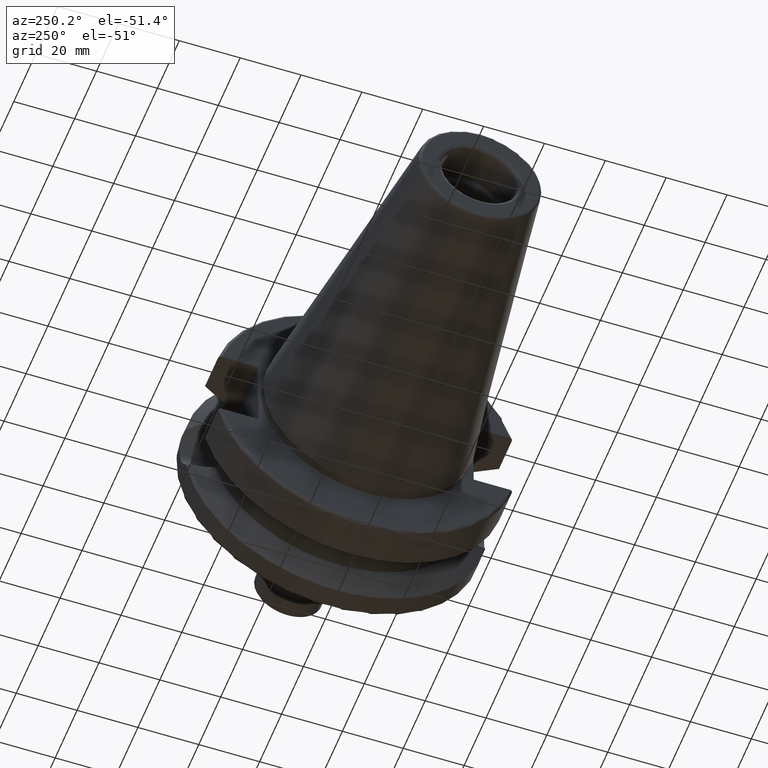
[diagram: clean part render]
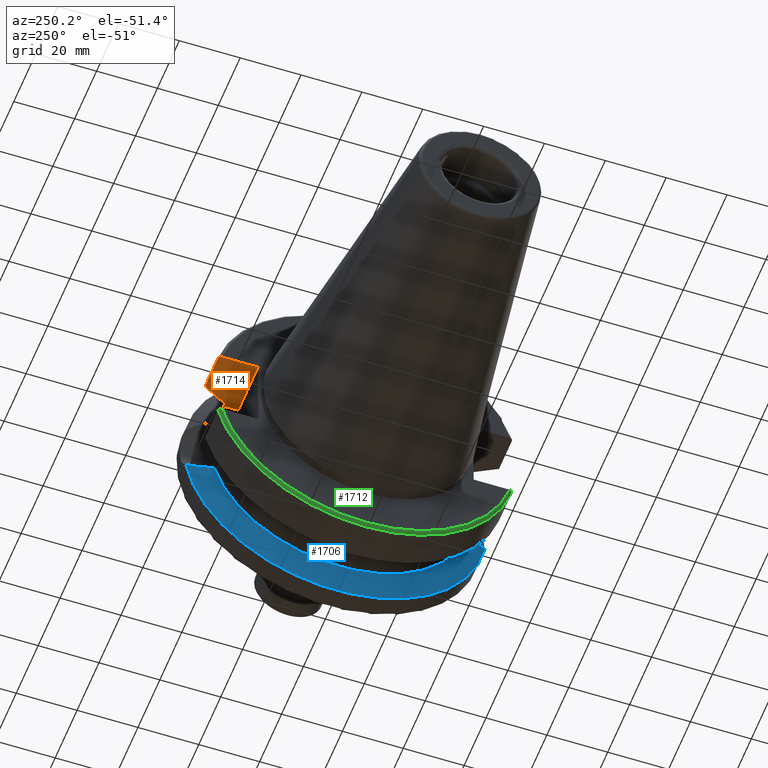
[diagram: same view with three faces highlighted in distinct colors, each labeled with its STEP entity id]
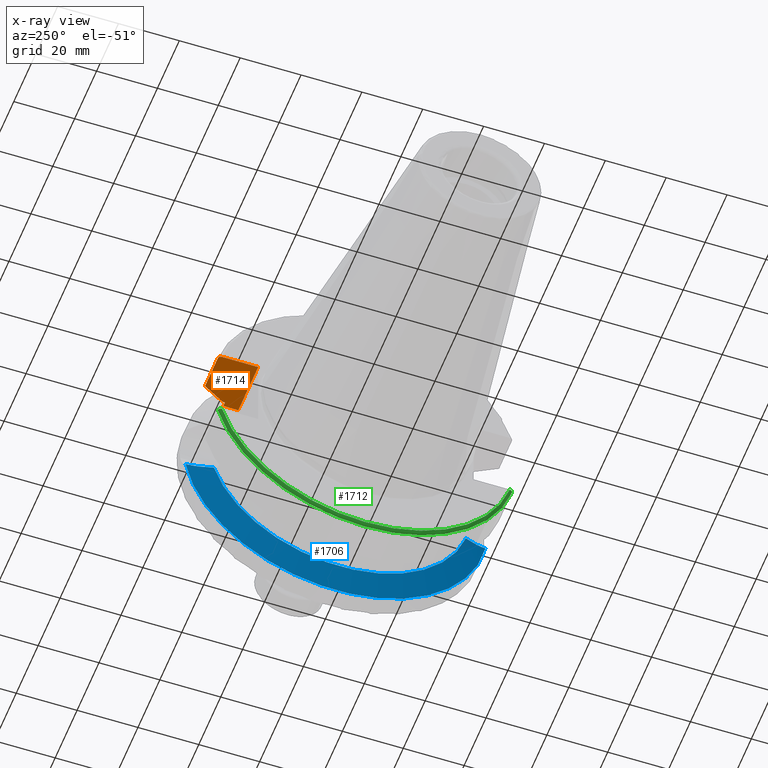
[diagram: x-ray of the same camera — body ghosted, the three highlighted faces saturated]
A machine part, auxiliary view with three faces highlighted in distinct colors.
The next image is the same camera in x-ray (body ghosted, the three faces saturated) — at least one of them is partly hidden behind the body in this view.
Their STEP definitions:

[orange] entity #1714 — the highlighted planar face has unit normal (0, 0, 1).
#67=(
BOUNDED_CURVE()
B_SPLINE_CURVE(2,(#2987,#2988,#2989),.UNSPECIFIED.,.F.,.F.)
B_SPLINE_CURVE_WITH_KNOTS((3,3),(0.,0.834435209413224),.UNSPECIFIED.)
CURVE()
GEOMETRIC_REPRESENTATION_ITEM()
RATIONAL_B_SPLINE_CURVE((1.,1.00310098206515,1.))
REPRESENTATION_ITEM('')
);
#89=B_SPLINE_CURVE_WITH_KNOTS('',3,(#2974,#2975,#2976,#2977,#2978,#2979,
#2980,#2981,#2982,#2983),.UNSPECIFIED.,.F.,.F.,(4,2,2,2,4),(0.,0.0366153602488886,
0.0738785471279767,0.111954770343825,0.150744738148559),.UNSPECIFIED.);
#284=FACE_OUTER_BOUND('',#394,.T.);
#394=EDGE_LOOP('',(#1305,#1306,#1307,#1308,#1309,#1310,#1311,#1312));
#523=LINE('',#2950,#643);
#525=LINE('',#2968,#645);
#526=LINE('',#2970,#646);
#527=LINE('',#2972,#647);
#528=LINE('',#2985,#648);
#529=LINE('',#2990,#649);
#643=VECTOR('',#2296,10.);
#645=VECTOR('',#2300,10.);
#646=VECTOR('',#2301,10.);
#647=VECTOR('',#2302,10.);
#648=VECTOR('',#2303,10.);
#649=VECTOR('',#2304,10.);
#785=VERTEX_POINT('',#2947);
#786=VERTEX_POINT('',#2949);
#789=VERTEX_POINT('',#2967);
#790=VERTEX_POINT('',#2969);
#791=VERTEX_POINT('',#2971);
#792=VERTEX_POINT('',#2973);
#793=VERTEX_POINT('',#2984);
#794=VERTEX_POINT('',#2986);
#978=EDGE_CURVE('',#785,#786,#523,.T.);
#982=EDGE_CURVE('',#786,#789,#525,.T.);
#983=EDGE_CURVE('',#790,#785,#526,.T.);
#984=EDGE_CURVE('',#791,#790,#527,.T.);
#985=EDGE_CURVE('',#792,#791,#89,.T.);
#986=EDGE_CURVE('',#793,#792,#528,.T.);
#987=EDGE_CURVE('',#794,#793,#67,.T.);
#988=EDGE_CURVE('',#789,#794,#529,.T.);
#1305=ORIENTED_EDGE('',*,*,#982,.F.);
#1306=ORIENTED_EDGE('',*,*,#978,.F.);
#1307=ORIENTED_EDGE('',*,*,#983,.F.);
#1308=ORIENTED_EDGE('',*,*,#984,.F.);
#1309=ORIENTED_EDGE('',*,*,#985,.F.);
#1310=ORIENTED_EDGE('',*,*,#986,.F.);
#1311=ORIENTED_EDGE('',*,*,#987,.F.);
#1312=ORIENTED_EDGE('',*,*,#988,.F.);
#1641=PLANE('',#1958);
#1714=ADVANCED_FACE('',(#284),#1641,.F.);
#1958=AXIS2_PLACEMENT_3D('',#2966,#2298,#2299);
#2296=DIRECTION('',(0.,1.,0.));
#2298=DIRECTION('center_axis',(1.22338625303048E-16,0.,1.));
#2299=DIRECTION('ref_axis',(1.,0.,-1.22338625303048E-16));
#2300=DIRECTION('',(-1.,0.,0.));
#2301=DIRECTION('',(1.,0.,-1.22338625303048E-16));
#2302=DIRECTION('',(0.,-1.,0.));
#2303=DIRECTION('',(-1.,0.,0.));
#2304=DIRECTION('',(0.,1.,0.));
#2947=CARTESIAN_POINT('',(21.15,35.4,12.85));
#2949=CARTESIAN_POINT('',(21.15,40.3009615269909,12.85));
#2950=CARTESIAN_POINT('',(21.15,35.4,12.85));
#2966=CARTESIAN_POINT('Origin',(3.,35.4,12.85));
#2967=CARTESIAN_POINT('',(19.7,40.3009615269909,12.85));
#2968=CARTESIAN_POINT('',(23.2,40.3009615269909,12.85));
#2969=CARTESIAN_POINT('',(3.,35.4,12.85));
#2970=CARTESIAN_POINT('',(3.,35.4,12.85));
#2971=CARTESIAN_POINT('',(2.99999999999999,47.2850663529195,12.85));
#2972=CARTESIAN_POINT('',(3.,42.2,12.85));
#2973=CARTESIAN_POINT('',(4.,48.320570153921,12.85));
#2974=CARTESIAN_POINT('Ctrl Pts',(4.,48.320570153921,12.85));
#2975=CARTESIAN_POINT('Ctrl Pts',(3.87794879917038,48.320570153921,12.85));
#2976=CARTESIAN_POINT('Ctrl Pts',(3.73444179762801,48.2913008148985,12.85));
#2977=CARTESIAN_POINT('Ctrl Pts',(3.50759661267378,48.195456420672,12.85));
#2978=CARTESIAN_POINT('Ctrl Pts',(3.38466178625349,48.1111726737502,12.85));
#2979=CARTESIAN_POINT('Ctrl Pts',(3.20894825591124,47.9317521656206,12.85));
#2980=CARTESIAN_POINT('Ctrl Pts',(3.12586105659968,47.8041069632012,12.85));
#2981=CARTESIAN_POINT('Ctrl Pts',(3.0295042947282,47.5666951077039,12.85));
#2982=CARTESIAN_POINT('Ctrl Pts',(3.,47.414366245602,12.85));
#2983=CARTESIAN_POINT('Ctrl Pts',(3.,47.2850663529195,12.85));
#2984=CARTESIAN_POINT('',(15.6679155870539,48.320570153921,12.85));
#2985=CARTESIAN_POINT('',(9.83395779352694,48.320570153921,12.85));
#2986=CARTESIAN_POINT('',(19.7,41.0150665107685,12.85));
#2987=CARTESIAN_POINT('Ctrl Pts',(19.7,41.0150665107685,12.85));
#2988=CARTESIAN_POINT('Ctrl Pts',(17.8488214944614,44.3920734073185,12.85));
#2989=CARTESIAN_POINT('Ctrl Pts',(15.6679155870539,48.320570153921,12.85));
#2990=CARTESIAN_POINT('',(19.7,38.85,12.85));

[blue] entity #1706 — the highlighted conical surface has half-angle 60.125 deg.
#76=B_SPLINE_CURVE_WITH_KNOTS('',3,(#2780,#2781,#2782,#2783,#2784,#2785),
 .UNSPECIFIED.,.F.,.F.,(4,2,4),(4.84387686434585,5.20294199056316,5.74499439715654),
 .UNSPECIFIED.);
#84=B_SPLINE_CURVE_WITH_KNOTS('',3,(#2896,#2897,#2898,#2899,#2900,#2901),
 .UNSPECIFIED.,.F.,.F.,(4,2,4),(1.70597184072793,2.24802424732131,2.60708937353861),
 .UNSPECIFIED.);
#120=CONICAL_SURFACE('',#1942,46.4904524201025,1.04937921276159);
#172=CIRCLE('',#1939,50.);
#175=CIRCLE('',#1943,42.9809048402051);
#276=FACE_OUTER_BOUND('',#386,.T.);
#386=EDGE_LOOP('',(#1265,#1266,#1267,#1268));
#751=VERTEX_POINT('',#2777);
#752=VERTEX_POINT('',#2779);
#774=VERTEX_POINT('',#2878);
#776=VERTEX_POINT('',#2894);
#931=EDGE_CURVE('',#752,#751,#76,.T.);
#957=EDGE_CURVE('',#752,#774,#172,.T.);
#961=EDGE_CURVE('',#751,#776,#175,.T.);
#962=EDGE_CURVE('',#776,#774,#84,.T.);
#1265=ORIENTED_EDGE('',*,*,#931,.T.);
#1266=ORIENTED_EDGE('',*,*,#961,.T.);
#1267=ORIENTED_EDGE('',*,*,#962,.T.);
#1268=ORIENTED_EDGE('',*,*,#957,.F.);
#1706=ADVANCED_FACE('',(#276),#120,.T.);
#1939=AXIS2_PLACEMENT_3D('',#2879,#2253,#2254);
#1942=AXIS2_PLACEMENT_3D('',#2893,#2259,#2260);
#1943=AXIS2_PLACEMENT_3D('',#2895,#2261,#2262);
#2253=DIRECTION('center_axis',(1.,0.,0.));
#2254=DIRECTION('ref_axis',(0.,0.,-1.));
#2259=DIRECTION('center_axis',(1.,0.,0.));
#2260=DIRECTION('ref_axis',(0.,1.,0.));
#2261=DIRECTION('center_axis',(1.,0.,0.));
#2262=DIRECTION('ref_axis',(0.,0.,-1.));
#2777=CARTESIAN_POINT('',(26.7,-41.388865421545,-11.5896505555603));
#2779=CARTESIAN_POINT('',(30.732084412946,-49.2614843635149,-8.56190155883473));
#2780=CARTESIAN_POINT('Ctrl Pts',(30.732084412946,-49.2614843635149,-8.56190155883472));
#2781=CARTESIAN_POINT('Ctrl Pts',(30.2082188762695,-48.2339624041648,-9.14818764948575));
#2782=CARTESIAN_POINT('Ctrl Pts',(29.6692681874855,-47.1784655131599,-9.64228850610742));
#2783=CARTESIAN_POINT('Ctrl Pts',(28.3833872619345,-44.664615633924,-10.6667071522788));
#2784=CARTESIAN_POINT('Ctrl Pts',(27.5575735603595,-43.0541580056802,-11.1789795661998));
#2785=CARTESIAN_POINT('Ctrl Pts',(26.7,-41.388865421545,-11.5896505555603));
#2878=CARTESIAN_POINT('',(30.732084412946,49.2614843635149,-8.56190155883473));
#2879=CARTESIAN_POINT('Origin',(30.732084412946,0.,0.));
#2893=CARTESIAN_POINT('Origin',(28.716042206473,0.,0.));
#2894=CARTESIAN_POINT('',(26.7,41.388865421545,-11.5896505555603));
#2895=CARTESIAN_POINT('Origin',(26.7,0.,0.));
#2896=CARTESIAN_POINT('Ctrl Pts',(26.7,41.388865421545,-11.5896505555603));
#2897=CARTESIAN_POINT('Ctrl Pts',(27.5575735603595,43.0541580056802,-11.1789795661998));
#2898=CARTESIAN_POINT('Ctrl Pts',(28.3833872619345,44.664615633924,-10.6667071522788));
#2899=CARTESIAN_POINT('Ctrl Pts',(29.6692681874855,47.1784655131599,-9.64228850610742));
#2900=CARTESIAN_POINT('Ctrl Pts',(30.2082188762695,48.2339624041648,-9.14818764948575));
#2901=CARTESIAN_POINT('Ctrl Pts',(30.732084412946,49.2614843635149,-8.56190155883473));

[green] entity #1712 — the highlighted toroidal blend (fillet) surface has major radius 49 mm and minor (blend) radius 1 mm.
#53=TOROIDAL_SURFACE('',#1954,49.,1.00000000000001);
#82=B_SPLINE_CURVE_WITH_KNOTS('',3,(#2854,#2855,#2856,#2857,#2858,#2859,
#2860,#2861,#2862,#2863),.UNSPECIFIED.,.F.,.F.,(4,2,2,2,4),(0.,0.0366153602488887,
0.0738785471279768,0.111954770343825,0.150744738148559),.UNSPECIFIED.);
#86=B_SPLINE_CURVE_WITH_KNOTS('',3,(#2934,#2935,#2936,#2937,#2938,#2939,
#2940,#2941,#2942,#2943),.UNSPECIFIED.,.F.,.F.,(4,2,2,2,4),(-0.150744738148559,
-0.111954770343824,-0.0738785471279767,-0.0366153602488887,0.),
 .UNSPECIFIED.);
#180=CIRCLE('',#1953,50.);
#181=CIRCLE('',#1955,49.);
#282=FACE_OUTER_BOUND('',#392,.T.);
#392=EDGE_LOOP('',(#1291,#1292,#1293,#1294));
#768=VERTEX_POINT('',#2851);
#769=VERTEX_POINT('',#2853);
#782=VERTEX_POINT('',#2928);
#783=VERTEX_POINT('',#2932);
#950=EDGE_CURVE('',#769,#768,#82,.T.);
#972=EDGE_CURVE('',#769,#782,#180,.T.);
#974=EDGE_CURVE('',#768,#783,#181,.T.);
#975=EDGE_CURVE('',#783,#782,#86,.T.);
#1291=ORIENTED_EDGE('',*,*,#950,.T.);
#1292=ORIENTED_EDGE('',*,*,#974,.T.);
#1293=ORIENTED_EDGE('',*,*,#975,.T.);
#1294=ORIENTED_EDGE('',*,*,#972,.F.);
#1712=ADVANCED_FACE('',(#282),#53,.T.);
#1953=AXIS2_PLACEMENT_3D('',#2929,#2284,#2285);
#1954=AXIS2_PLACEMENT_3D('',#2931,#2287,#2288);
#1955=AXIS2_PLACEMENT_3D('',#2933,#2289,#2290);
#2284=DIRECTION('center_axis',(1.,0.,0.));
#2285=DIRECTION('ref_axis',(0.,0.,-1.));
#2287=DIRECTION('center_axis',(1.,0.,0.));
#2288=DIRECTION('ref_axis',(0.,0.,-1.));
#2289=DIRECTION('center_axis',(1.,0.,0.));
#2290=DIRECTION('ref_axis',(0.,0.,-1.));
#2851=CARTESIAN_POINT('',(3.,-47.2850663529195,-12.85));
#2853=CARTESIAN_POINT('',(4.,-48.320570153921,-12.85));
#2854=CARTESIAN_POINT('Ctrl Pts',(4.,-48.320570153921,-12.85));
#2855=CARTESIAN_POINT('Ctrl Pts',(3.87794879917037,-48.320570153921,-12.85));
#2856=CARTESIAN_POINT('Ctrl Pts',(3.73444179762801,-48.2913008148985,-12.85));
#2857=CARTESIAN_POINT('Ctrl Pts',(3.50759661267378,-48.195456420672,-12.85));
#2858=CARTESIAN_POINT('Ctrl Pts',(3.38466178625349,-48.1111726737502,-12.85));
#2859=CARTESIAN_POINT('Ctrl Pts',(3.20894825591124,-47.9317521656206,-12.85));
#2860=CARTESIAN_POINT('Ctrl Pts',(3.12586105659968,-47.8041069632012,-12.85));
#2861=CARTESIAN_POINT('Ctrl Pts',(3.0295042947282,-47.5666951077039,-12.85));
#2862=CARTESIAN_POINT('Ctrl Pts',(3.,-47.414366245602,-12.85));
#2863=CARTESIAN_POINT('Ctrl Pts',(3.,-47.2850663529195,-12.85));
#2928=CARTESIAN_POINT('',(4.,48.320570153921,-12.85));
#2929=CARTESIAN_POINT('Origin',(4.,0.,0.));
#2931=CARTESIAN_POINT('Origin',(4.,0.,0.));
#2932=CARTESIAN_POINT('',(3.,47.2850663529195,-12.85));
#2933=CARTESIAN_POINT('Origin',(2.99999999999999,0.,0.));
#2934=CARTESIAN_POINT('Ctrl Pts',(3.,47.2850663529195,-12.85));
#2935=CARTESIAN_POINT('Ctrl Pts',(3.,47.414366245602,-12.85));
#2936=CARTESIAN_POINT('Ctrl Pts',(3.0295042947282,47.5666951077039,-12.85));
#2937=CARTESIAN_POINT('Ctrl Pts',(3.12586105659968,47.8041069632012,-12.85));
#2938=CARTESIAN_POINT('Ctrl Pts',(3.20894825591124,47.9317521656206,-12.85));
#2939=CARTESIAN_POINT('Ctrl Pts',(3.38466178625349,48.1111726737502,-12.85));
#2940=CARTESIAN_POINT('Ctrl Pts',(3.50759661267378,48.195456420672,-12.85));
#2941=CARTESIAN_POINT('Ctrl Pts',(3.73444179762801,48.2913008148985,-12.85));
#2942=CARTESIAN_POINT('Ctrl Pts',(3.87794879917037,48.320570153921,-12.85));
#2943=CARTESIAN_POINT('Ctrl Pts',(4.,48.320570153921,-12.85));